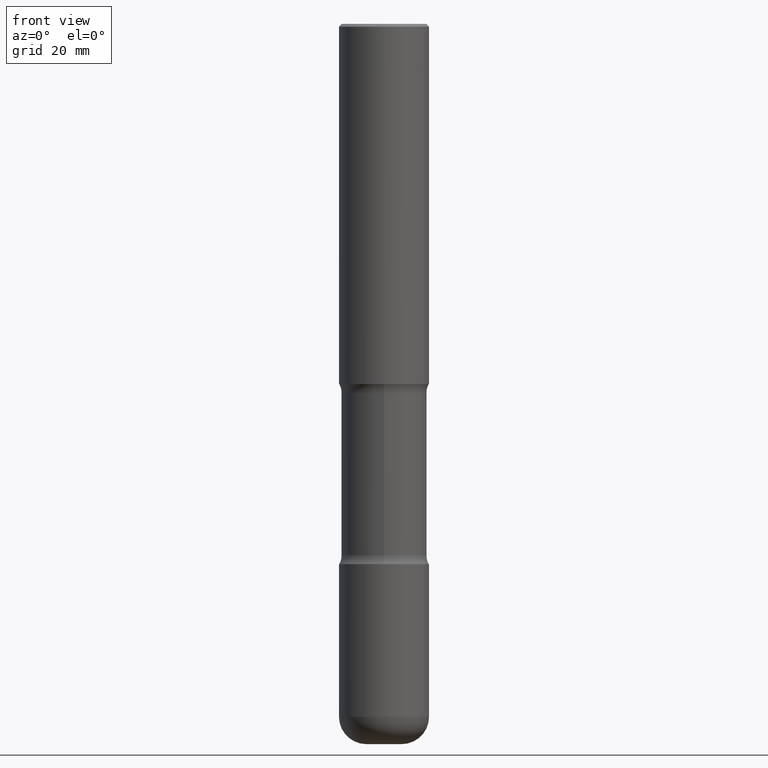
[diagram: clean part render]
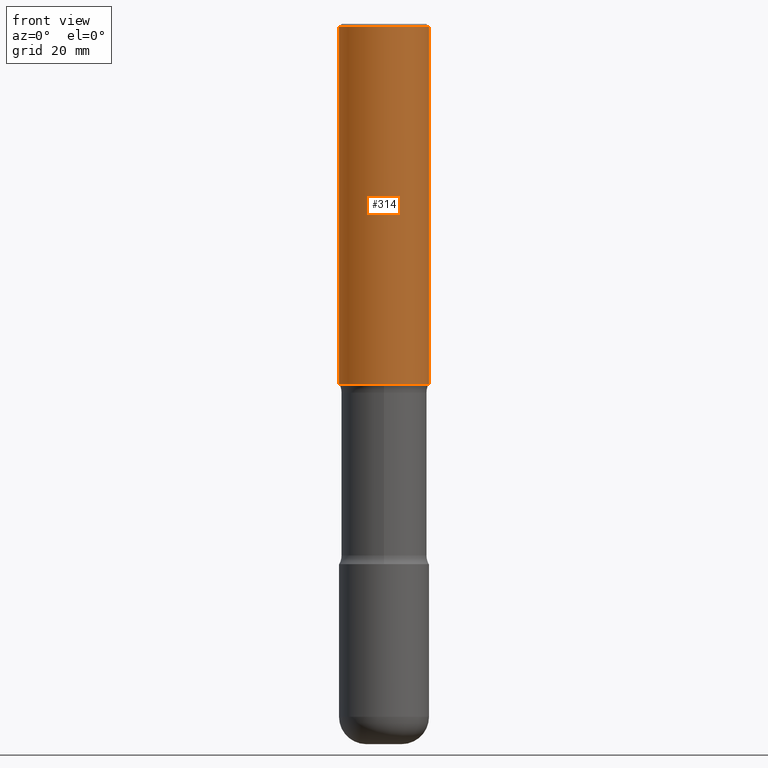
[diagram: same view with one face highlighted and labeled with its STEP entity id]
A machine part, front view. The second image highlights one B-rep face of the part: STEP entity #314.
In plain terms, the highlighted cylindrical surface (partial cylindrical patch) has radius 7.9375 mm, axis along (-0, 0, 1).
Its self-contained STEP definition (entity closure, byte-faithful):
#29 = VERTEX_POINT ( 'NONE', #477 ) ;
#35 = DIRECTION ( 'NONE',  ( -2.445468806185136597E-29, 3.491481338843145583E-15, 1.000000000000000000 ) ) ;
#66 = ORIENTED_EDGE ( 'NONE', *, *, #358, .T. ) ;
#70 = DIRECTION ( 'NONE',  ( 1.000000000000000000, -6.982962677686266711E-15, 0.000000000000000000 ) ) ;
#85 = CARTESIAN_POINT ( 'NONE',  ( -0.3125000000000000000, 2.220446049250313081E-15, -1.537167215704658232E-29 ) ) ;
#86 = DIRECTION ( 'NONE',  ( -2.445468806185136877E-29, 3.491481338843145188E-15, 1.000000000000000000 ) ) ;
#92 = DIRECTION ( 'NONE',  ( -2.445468806185136597E-29, 3.491481338843145583E-15, 1.000000000000000000 ) ) ;
#103 = VECTOR ( 'NONE', #489, 39.37007874015748143 ) ;
#125 = LINE ( 'NONE', #85, #103 ) ;
#157 = CARTESIAN_POINT ( 'NONE',  ( 0.3124999999999998890, -2.213735251080466123E-15, -0.02000000000000006981 ) ) ;
#166 = EDGE_LOOP ( 'NONE', ( #522, #66, #499, #551 ) ) ;
#168 = EDGE_CURVE ( 'NONE', #508, #542, #125, .T. ) ;
#206 = CARTESIAN_POINT ( 'NONE',  ( -0.3124999999999998890, 2.112346210000094260E-15, -0.02000000000000006981 ) ) ;
#266 = CYLINDRICAL_SURFACE ( 'NONE', #268, 0.3125000000000000000 ) ;
#268 = AXIS2_PLACEMENT_3D ( 'NONE', #313, #92, #447 ) ;
#274 = CIRCLE ( 'NONE', #346, 0.3125000000000002220 ) ;
#313 = CARTESIAN_POINT ( 'NONE',  ( 0.000000000000000000, 0.000000000000000000, 0.000000000000000000 ) ) ;
#314 = ADVANCED_FACE ( 'NONE', ( #351 ), #266, .T. ) ;
#346 = AXIS2_PLACEMENT_3D ( 'NONE', #497, #506, #70 ) ;
#351 = FACE_OUTER_BOUND ( 'NONE', #166, .T. ) ;
#358 = EDGE_CURVE ( 'NONE', #508, #29, #274, .T. ) ;
#386 = AXIS2_PLACEMENT_3D ( 'NONE', #511, #35, #471 ) ;
#392 = CARTESIAN_POINT ( 'NONE',  ( 0.3125000000000000000, -2.182175836776958347E-15, 1.523805242436230075E-29 ) ) ;
#405 = EDGE_CURVE ( 'NONE', #542, #455, #523, .T. ) ;
#429 = VECTOR ( 'NONE', #86, 39.37007874015748143 ) ;
#430 = LINE ( 'NONE', #392, #429 ) ;
#434 = EDGE_CURVE ( 'NONE', #29, #455, #430, .T. ) ;
#447 = DIRECTION ( 'NONE',  ( 1.000000000000000000, -6.982962677686266711E-15, 4.876176775795936353E-29 ) ) ;
#455 = VERTEX_POINT ( 'NONE', #157 ) ;
#471 = DIRECTION ( 'NONE',  ( 1.000000000000000000, -6.982962677686266711E-15, 0.000000000000000000 ) ) ;
#477 = CARTESIAN_POINT ( 'NONE',  ( 0.3125000000000002220, -1.091087918388482329E-14, -2.499999999999999556 ) ) ;
#489 = DIRECTION ( 'NONE',  ( -2.445468806185136877E-29, 3.491481338843145188E-15, 1.000000000000000000 ) ) ;
#497 = CARTESIAN_POINT ( 'NONE',  ( 6.113672015462840371E-29, -8.728703347107863365E-15, -2.499999999999999556 ) ) ;
#499 = ORIENTED_EDGE ( 'NONE', *, *, #434, .T. ) ;
#506 = DIRECTION ( 'NONE',  ( -2.445468806185136597E-29, 3.491481338843145583E-15, 1.000000000000000000 ) ) ;
#508 = VERTEX_POINT ( 'NONE', #515 ) ;
#511 = CARTESIAN_POINT ( 'NONE',  ( 4.890937612370289799E-31, -6.982962677686315028E-17, -0.02000000000000006981 ) ) ;
#515 = CARTESIAN_POINT ( 'NONE',  ( -0.3125000000000002220, -2.178820437692046306E-15, -2.499999999999999556 ) ) ;
#522 = ORIENTED_EDGE ( 'NONE', *, *, #168, .F. ) ;
#523 = CIRCLE ( 'NONE', #386, 0.3124999999999998890 ) ;
#542 = VERTEX_POINT ( 'NONE', #206 ) ;
#551 = ORIENTED_EDGE ( 'NONE', *, *, #405, .F. ) ;